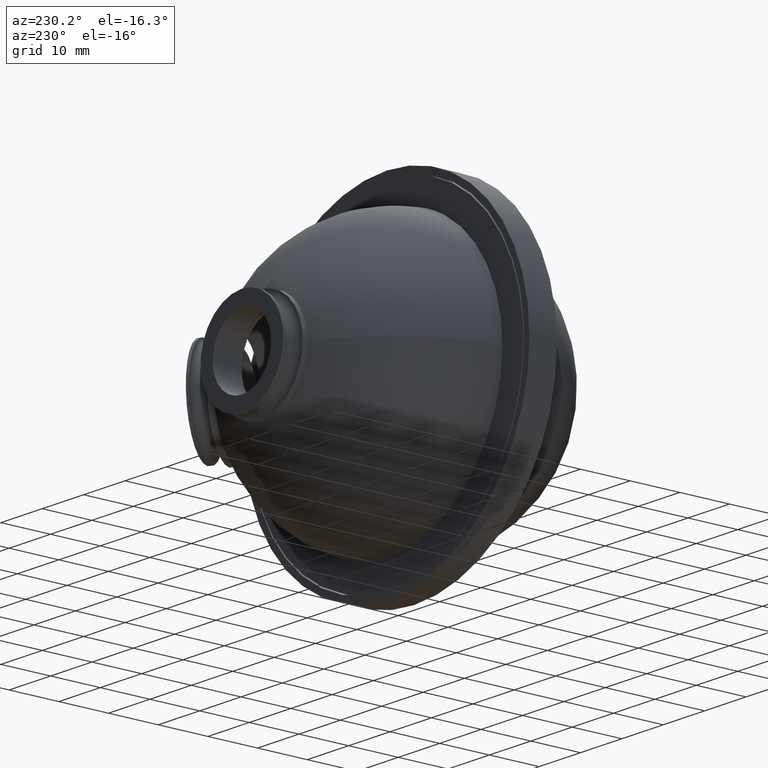
[diagram: clean part render]
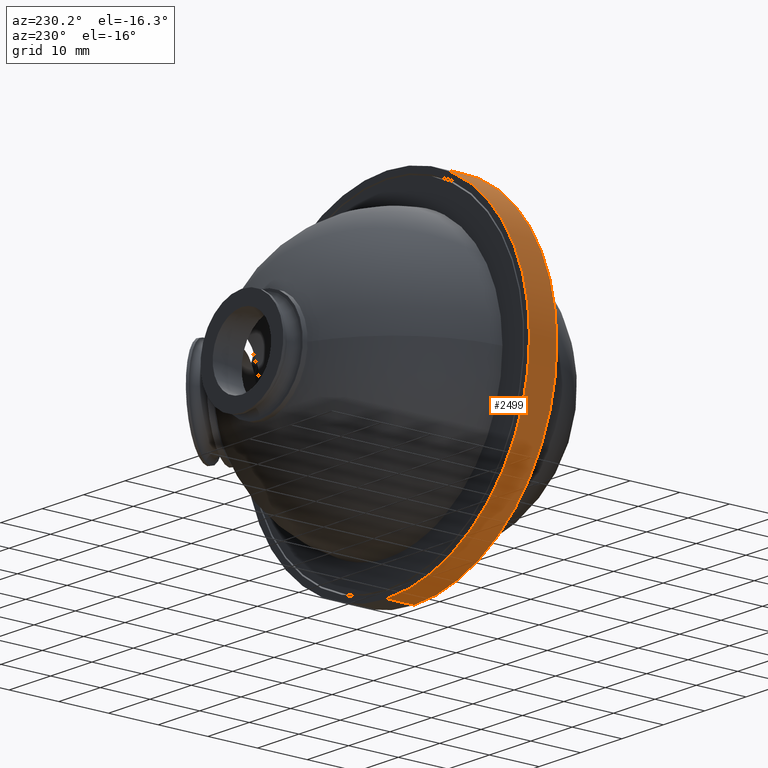
[diagram: same view with one face highlighted and labeled with its STEP entity id]
A machine part, auxiliary view. The second image highlights one B-rep face of the part: STEP entity #2499.
In plain terms, the highlighted cylindrical surface (partial cylindrical patch) has radius 34.5 mm, axis along (-0, -1, -0).
Its self-contained STEP definition (entity closure, byte-faithful):
#130 = FACE_OUTER_BOUND ( 'NONE', #1824, .T. ) ;
#219 = DIRECTION ( 'NONE',  ( 0.000000000000000000, 0.000000000000000000, 1.000000000000000000 ) ) ;
#221 = AXIS2_PLACEMENT_3D ( 'NONE', #2807, #3407, #219 ) ;
#527 = CARTESIAN_POINT ( 'NONE',  ( 8.484018949608307381, -16.41086588718419392, -34.49999999999999289 ) ) ;
#606 = DIRECTION ( 'NONE',  ( -0.000000000000000000, -1.000000000000000000, -0.000000000000000000 ) ) ;
#779 = CIRCLE ( 'NONE', #2591, 34.49999999999999289 ) ;
#803 = CARTESIAN_POINT ( 'NONE',  ( 8.484018949608307381, -21.91086588718419748, -34.49999999999999289 ) ) ;
#914 = VERTEX_POINT ( 'NONE', #3015 ) ;
#959 = AXIS2_PLACEMENT_3D ( 'NONE', #2738, #2111, #2452 ) ;
#1058 = ORIENTED_EDGE ( 'NONE', *, *, #1726, .T. ) ;
#1261 = ORIENTED_EDGE ( 'NONE', *, *, #1870, .F. ) ;
#1409 = EDGE_CURVE ( 'NONE', #2635, #914, #3519, .T. ) ;
#1461 = CARTESIAN_POINT ( 'NONE',  ( 8.484018949608310933, -16.41086588718419392, 34.49999999999999289 ) ) ;
#1726 = EDGE_CURVE ( 'NONE', #2100, #2635, #3459, .T. ) ;
#1754 = CARTESIAN_POINT ( 'NONE',  ( 8.484018949608307381, -16.41086588718419392, 0.000000000000000000 ) ) ;
#1807 = ORIENTED_EDGE ( 'NONE', *, *, #1409, .T. ) ;
#1824 = EDGE_LOOP ( 'NONE', ( #1261, #3056, #1058, #1807 ) ) ;
#1870 = EDGE_CURVE ( 'NONE', #2433, #914, #2841, .T. ) ;
#1985 = DIRECTION ( 'NONE',  ( -0.000000000000000000, -1.000000000000000000, -0.000000000000000000 ) ) ;
#2074 = VECTOR ( 'NONE', #1985, 1000.000000000000000 ) ;
#2100 = VERTEX_POINT ( 'NONE', #2405 ) ;
#2111 = DIRECTION ( 'NONE',  ( -0.000000000000000000, -1.000000000000000000, -0.000000000000000000 ) ) ;
#2382 = EDGE_CURVE ( 'NONE', #2100, #2433, #779, .T. ) ;
#2405 = CARTESIAN_POINT ( 'NONE',  ( 8.484018949608307381, -16.41086588718419392, -34.49999999999999289 ) ) ;
#2414 = CYLINDRICAL_SURFACE ( 'NONE', #959, 34.49999999999999289 ) ;
#2433 = VERTEX_POINT ( 'NONE', #2756 ) ;
#2452 = DIRECTION ( 'NONE',  ( 0.000000000000000000, 0.000000000000000000, -1.000000000000000000 ) ) ;
#2499 = ADVANCED_FACE ( 'NONE', ( #130 ), #2414, .T. ) ;
#2591 = AXIS2_PLACEMENT_3D ( 'NONE', #1754, #3166, #3764 ) ;
#2635 = VERTEX_POINT ( 'NONE', #803 ) ;
#2738 = CARTESIAN_POINT ( 'NONE',  ( 8.484018949608307381, -16.41086588718419392, 0.000000000000000000 ) ) ;
#2756 = CARTESIAN_POINT ( 'NONE',  ( 8.484018949608310933, -16.41086588718419392, 34.49999999999999289 ) ) ;
#2807 = CARTESIAN_POINT ( 'NONE',  ( 8.484018949608307381, -21.91086588718419748, 0.000000000000000000 ) ) ;
#2841 = LINE ( 'NONE', #1461, #3051 ) ;
#3015 = CARTESIAN_POINT ( 'NONE',  ( 8.484018949608310933, -21.91086588718419748, 34.49999999999999289 ) ) ;
#3051 = VECTOR ( 'NONE', #606, 1000.000000000000000 ) ;
#3056 = ORIENTED_EDGE ( 'NONE', *, *, #2382, .F. ) ;
#3166 = DIRECTION ( 'NONE',  ( 0.000000000000000000, 1.000000000000000000, 0.000000000000000000 ) ) ;
#3407 = DIRECTION ( 'NONE',  ( 0.000000000000000000, 1.000000000000000000, 0.000000000000000000 ) ) ;
#3459 = LINE ( 'NONE', #527, #2074 ) ;
#3519 = CIRCLE ( 'NONE', #221, 34.49999999999999289 ) ;
#3764 = DIRECTION ( 'NONE',  ( 0.000000000000000000, 0.000000000000000000, 1.000000000000000000 ) ) ;